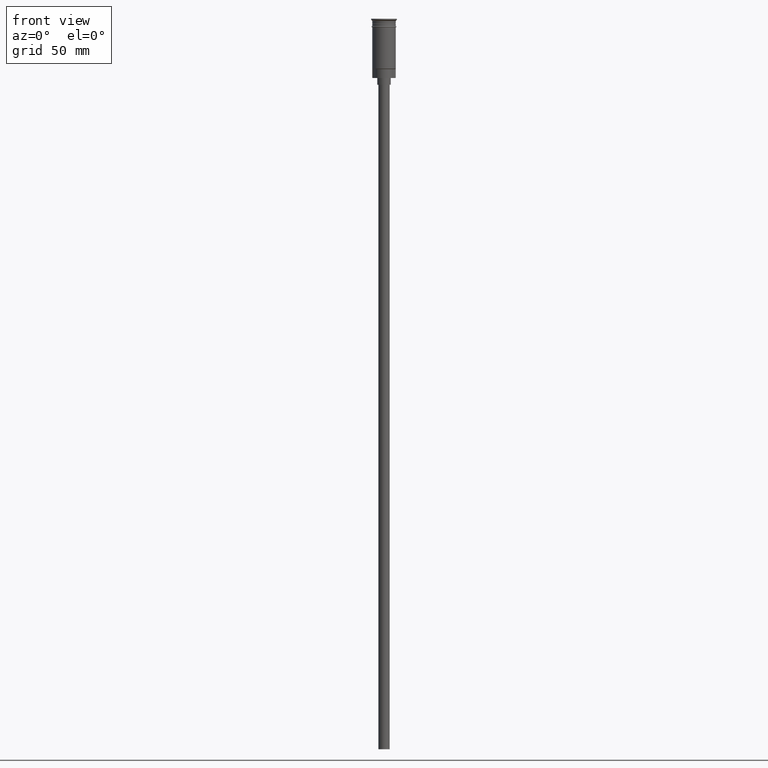
[diagram: clean part render]
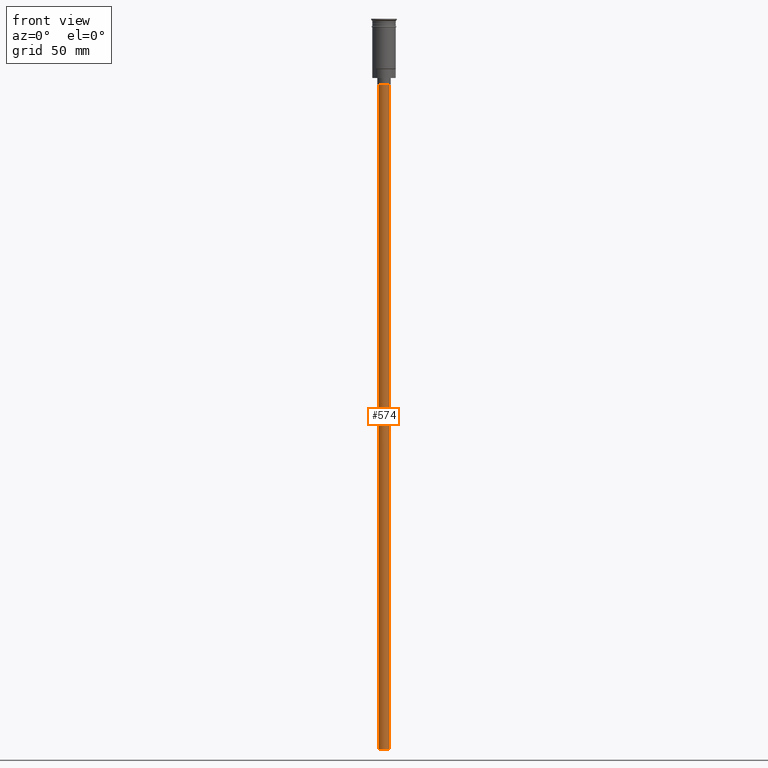
[diagram: same view with one face highlighted and labeled with its STEP entity id]
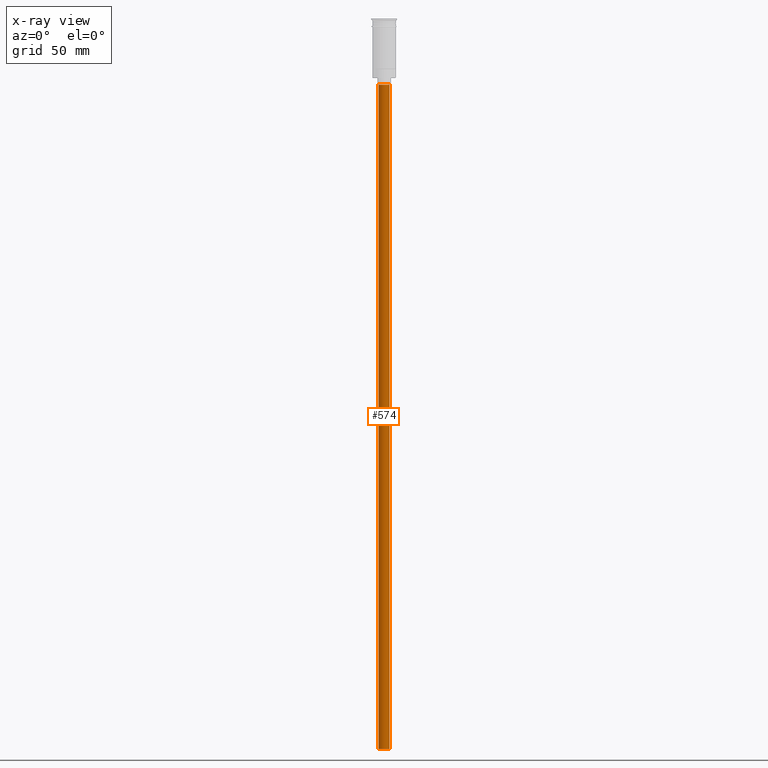
[diagram: x-ray of the same camera — body ghosted, the highlighted face saturated]
A machine part, front view. The second image highlights one B-rep face of the part: STEP entity #574.
The next image is the same camera in x-ray: the body ghosted, the highlighted face saturated — about 0% of this face is hidden behind the body in this view.
In plain terms, the highlighted cylindrical surface (edge-blend (fillet) strip) has radius 2.5 mm, axis along (-0, -0, 1).
Its self-contained STEP definition (entity closure, byte-faithful):
#25 = CARTESIAN_POINT ( 'NONE',  ( 2.500000000000000000, 0.000000000000000000, -326.5000000000000000 ) ) ;
#35 = CARTESIAN_POINT ( 'NONE',  ( 0.000000000000000000, 0.000000000000000000, -29.50000000000000000 ) ) ;
#47 = ORIENTED_EDGE ( 'NONE', *, *, #246, .T. ) ;
#52 = CARTESIAN_POINT ( 'NONE',  ( -2.500000000000000000, 3.061616997868383141E-16, -29.50000000000000000 ) ) ;
#123 = CYLINDRICAL_SURFACE ( 'NONE', #1558, 2.500000000000000000 ) ;
#180 = VECTOR ( 'NONE', #1270, 1000.000000000000000 ) ;
#187 = LINE ( 'NONE', #1023, #180 ) ;
#212 = DIRECTION ( 'NONE',  ( -1.000000000000000000, 0.000000000000000000, 0.000000000000000000 ) ) ;
#225 = VERTEX_POINT ( 'NONE', #52 ) ;
#246 = EDGE_CURVE ( 'NONE', #975, #1178, #187, .T. ) ;
#255 = FACE_OUTER_BOUND ( 'NONE', #1569, .T. ) ;
#352 = EDGE_CURVE ( 'NONE', #1178, #225, #1460, .T. ) ;
#407 = EDGE_CURVE ( 'NONE', #975, #833, #1589, .T. ) ;
#440 = CARTESIAN_POINT ( 'NONE',  ( 2.500000000000000000, 0.000000000000000000, -29.50000000000000000 ) ) ;
#574 = ADVANCED_FACE ( 'NONE', ( #255 ), #123, .T. ) ;
#702 = DIRECTION ( 'NONE',  ( -1.000000000000000000, 0.000000000000000000, 0.000000000000000000 ) ) ;
#713 = DIRECTION ( 'NONE',  ( -0.000000000000000000, -0.000000000000000000, 1.000000000000000000 ) ) ;
#833 = VERTEX_POINT ( 'NONE', #1075 ) ;
#884 = DIRECTION ( 'NONE',  ( -0.000000000000000000, -0.000000000000000000, 1.000000000000000000 ) ) ;
#942 = EDGE_CURVE ( 'NONE', #833, #225, #1010, .T. ) ;
#975 = VERTEX_POINT ( 'NONE', #25 ) ;
#1010 = LINE ( 'NONE', #1237, #1362 ) ;
#1021 = DIRECTION ( 'NONE',  ( 0.000000000000000000, 0.000000000000000000, -1.000000000000000000 ) ) ;
#1023 = CARTESIAN_POINT ( 'NONE',  ( 2.500000000000000000, 0.000000000000000000, -326.5000000000000000 ) ) ;
#1075 = CARTESIAN_POINT ( 'NONE',  ( -2.500000000000000000, 3.061616997868383141E-16, -326.5000000000000000 ) ) ;
#1160 = AXIS2_PLACEMENT_3D ( 'NONE', #1292, #1190, #212 ) ;
#1166 = ORIENTED_EDGE ( 'NONE', *, *, #407, .F. ) ;
#1178 = VERTEX_POINT ( 'NONE', #440 ) ;
#1190 = DIRECTION ( 'NONE',  ( 0.000000000000000000, 0.000000000000000000, -1.000000000000000000 ) ) ;
#1203 = DIRECTION ( 'NONE',  ( 1.000000000000000000, 0.000000000000000000, 0.000000000000000000 ) ) ;
#1237 = CARTESIAN_POINT ( 'NONE',  ( -2.500000000000000000, 3.061616997868383141E-16, -326.5000000000000000 ) ) ;
#1270 = DIRECTION ( 'NONE',  ( -0.000000000000000000, -0.000000000000000000, 1.000000000000000000 ) ) ;
#1292 = CARTESIAN_POINT ( 'NONE',  ( 0.000000000000000000, 0.000000000000000000, -326.5000000000000000 ) ) ;
#1362 = VECTOR ( 'NONE', #884, 1000.000000000000000 ) ;
#1373 = ORIENTED_EDGE ( 'NONE', *, *, #352, .T. ) ;
#1460 = CIRCLE ( 'NONE', #1490, 2.500000000000000000 ) ;
#1490 = AXIS2_PLACEMENT_3D ( 'NONE', #35, #1021, #702 ) ;
#1558 = AXIS2_PLACEMENT_3D ( 'NONE', #1578, #713, #1203 ) ;
#1569 = EDGE_LOOP ( 'NONE', ( #1581, #1166, #47, #1373 ) ) ;
#1578 = CARTESIAN_POINT ( 'NONE',  ( 0.000000000000000000, 0.000000000000000000, -326.5000000000000000 ) ) ;
#1581 = ORIENTED_EDGE ( 'NONE', *, *, #942, .F. ) ;
#1589 = CIRCLE ( 'NONE', #1160, 2.500000000000000000 ) ;